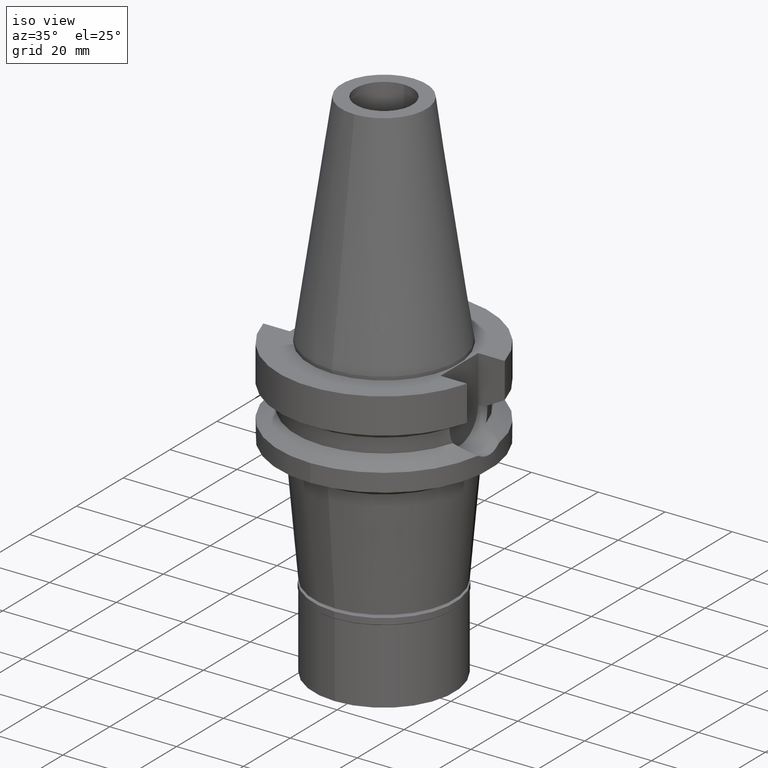
[diagram: clean part render]
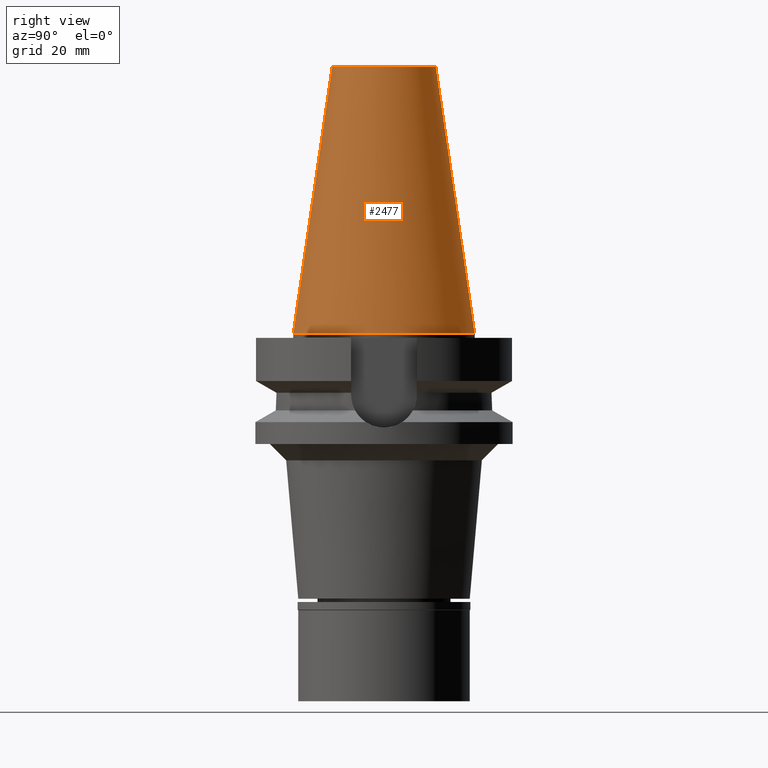
[diagram: tour spotlight — one face highlighted and labeled with its STEP entity id]
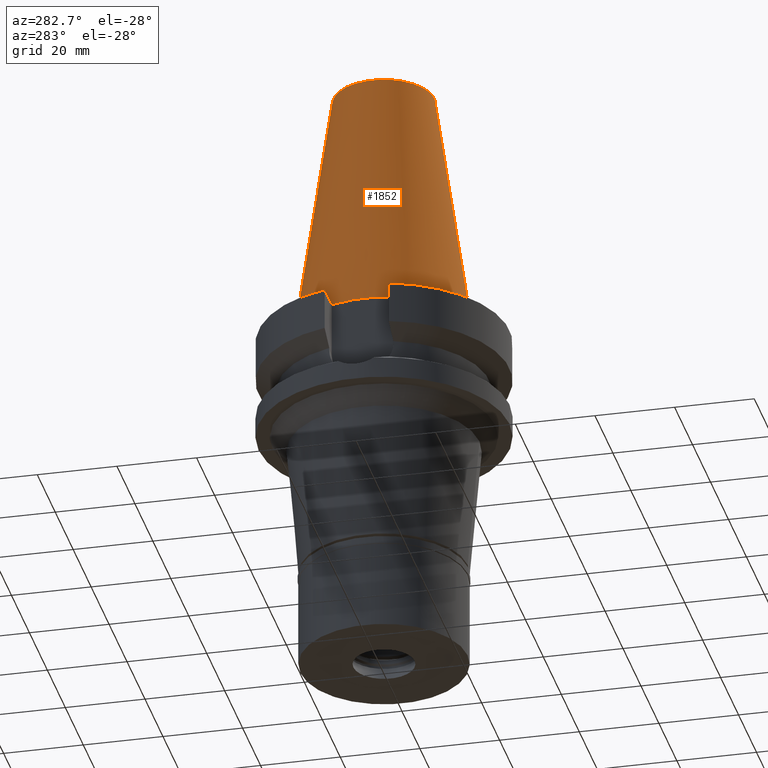
[diagram: tour spotlight — one face highlighted and labeled with its STEP entity id]
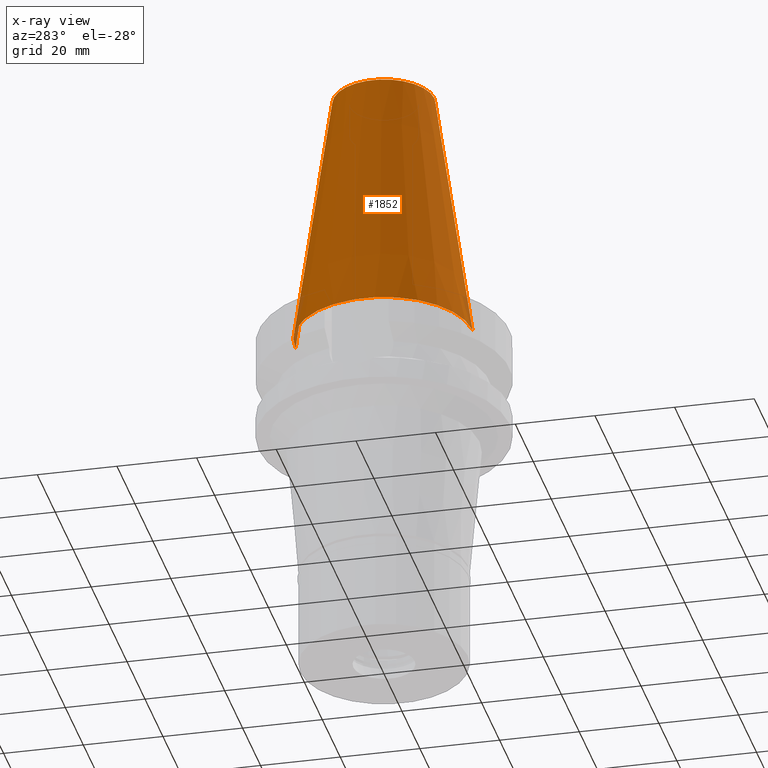
[diagram: x-ray of the same camera — body ghosted, this tour face saturated]
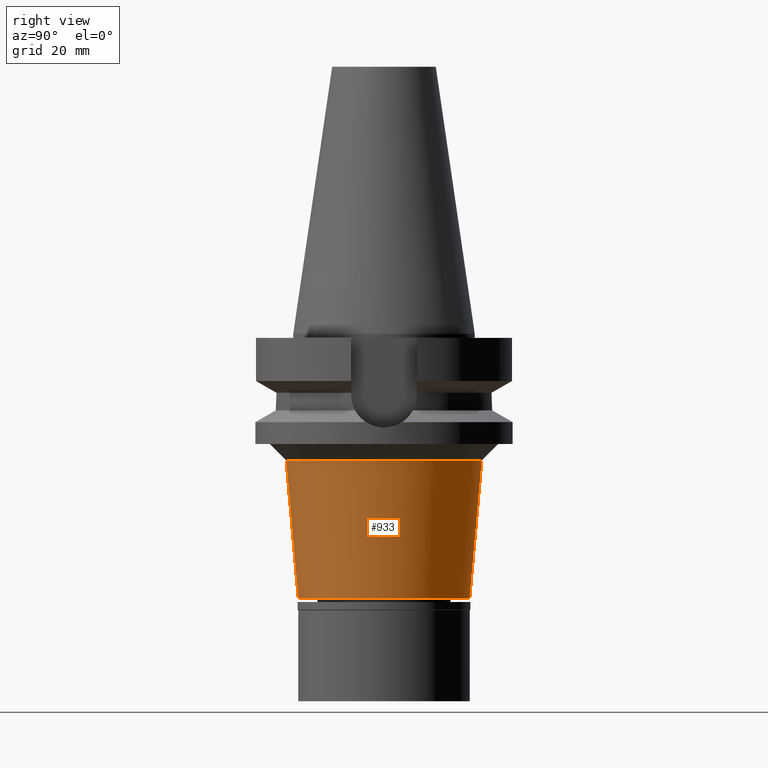
[diagram: tour spotlight — one face highlighted and labeled with its STEP entity id]
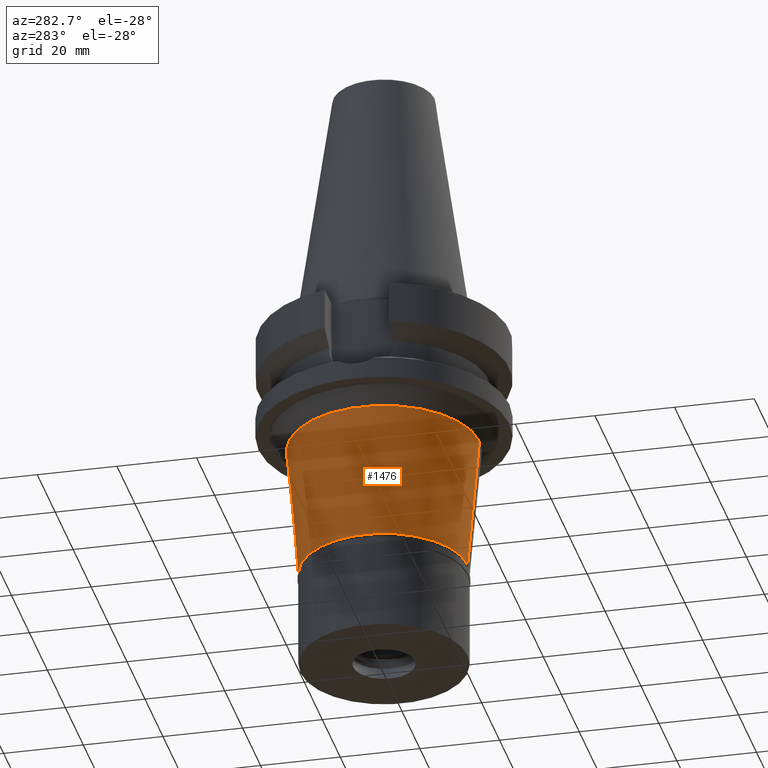
[diagram: tour spotlight — one face highlighted and labeled with its STEP entity id]
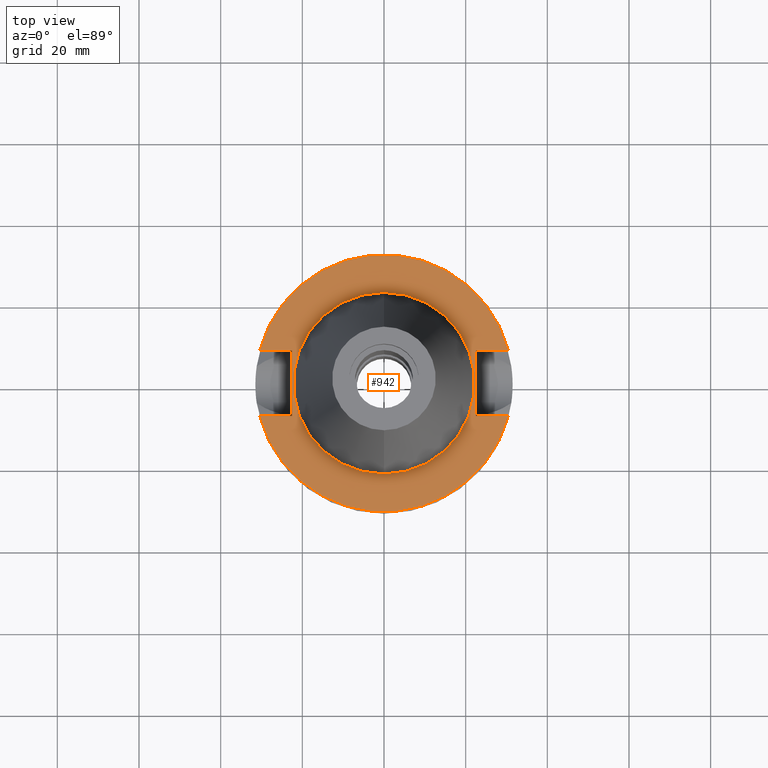
[diagram: tour spotlight — one face highlighted and labeled with its STEP entity id]
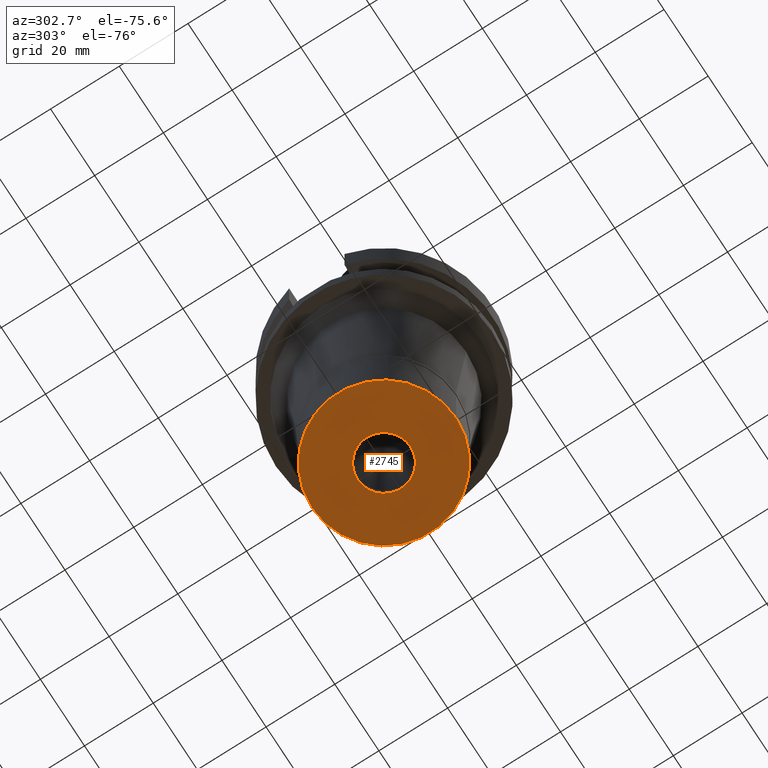
[diagram: tour spotlight — one face highlighted and labeled with its STEP entity id]
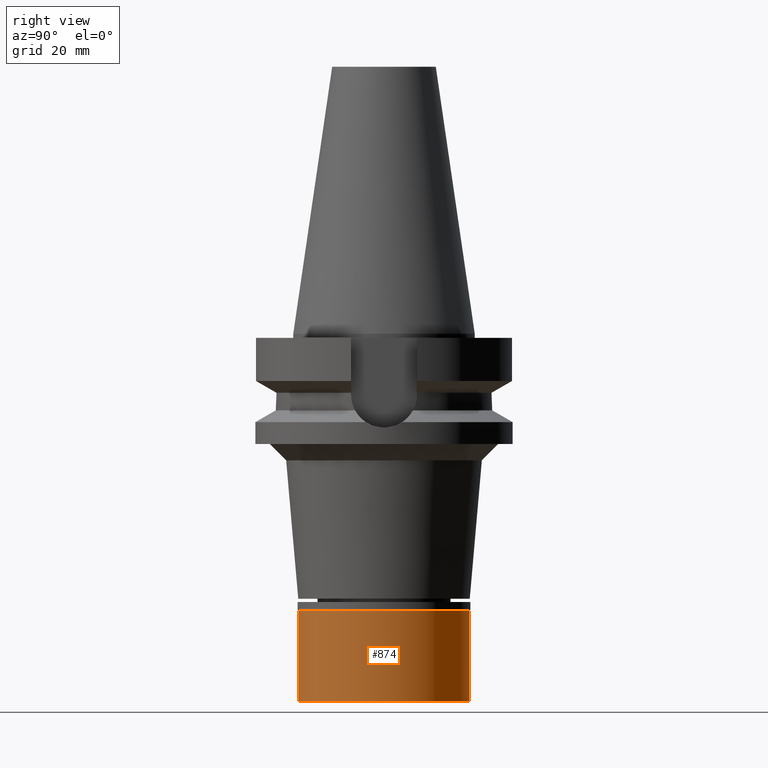
[diagram: tour spotlight — one face highlighted and labeled with its STEP entity id]
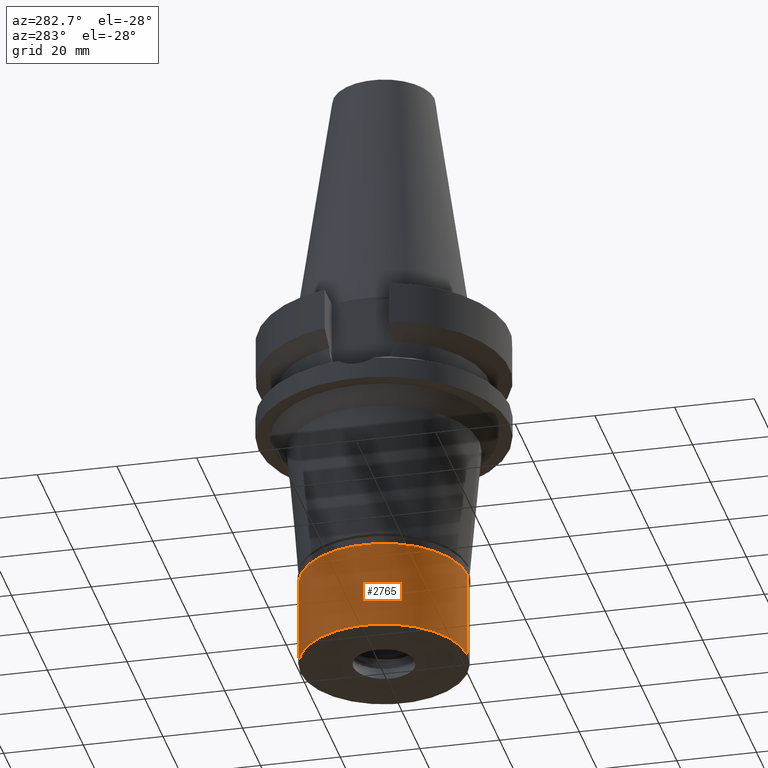
[diagram: tour spotlight — one face highlighted and labeled with its STEP entity id]
A machine part: a face-by-face anatomy tour. The part has 81 B-rep faces; the first image is the clean iso view, then the 8 largest visible faces are spotlighted one at a time (largest first), each with its STEP entity span.

Face 1 — right view, entity #2477. In plain terms, the highlighted conical surface has half-angle 8.297 deg.
Definition (entity closure, byte-faithful):
#53 = EDGE_LOOP ( 'NONE', ( #2361, #862, #2758, #2292 ) ) ;
#106 = DIRECTION ( 'NONE',  ( 0.0000000000000000000, -0.1443043893539925626, -0.9895333461855498891 ) ) ;
#161 = VERTEX_POINT ( 'NONE', #1517 ) ;
#201 = CARTESIAN_POINT ( 'NONE',  ( 0.0000000000000000000, -12.68766899429999917, 65.40000000000000568 ) ) ;
#221 = VECTOR ( 'NONE', #106, 1000.000000000000114 ) ;
#229 = CARTESIAN_POINT ( 'NONE',  ( 0.0000000000000000000, -22.22500000000000142, 6.394884621841000123E-14 ) ) ;
#326 = DIRECTION ( 'NONE',  ( 0.0000000000000000000, 1.000000000000000000, 0.0000000000000000000 ) ) ;
#533 = AXIS2_PLACEMENT_3D ( 'NONE', #2571, #1868, #906 ) ;
#569 = DIRECTION ( 'NONE',  ( 0.0000000000000000000, 0.0000000000000000000, -1.000000000000000000 ) ) ;
#654 = VERTEX_POINT ( 'NONE', #229 ) ;
#738 = EDGE_CURVE ( 'NONE', #1471, #2263, #1246, .T. ) ;
#785 = FACE_OUTER_BOUND ( 'NONE', #53, .T. ) ;
#829 = CARTESIAN_POINT ( 'NONE',  ( 0.0000000000000000000, -12.68766899429999917, 65.40000000000000568 ) ) ;
#862 = ORIENTED_EDGE ( 'NONE', *, *, #3039, .T. ) ;
#906 = DIRECTION ( 'NONE',  ( 0.0000000000000000000, -1.000000000000000000, 0.0000000000000000000 ) ) ;
#1145 = DIRECTION ( 'NONE',  ( 0.0000000000000000000, 1.000000000000000000, 0.0000000000000000000 ) ) ;
#1242 = CONICAL_SURFACE ( 'NONE', #533, 17.45633449714999941, 0.1448099680379422438 ) ;
#1246 = CIRCLE ( 'NONE', #1860, 12.68766899429999917 ) ;
#1321 = LINE ( 'NONE', #829, #221 ) ;
#1471 = VERTEX_POINT ( 'NONE', #2718 ) ;
#1517 = CARTESIAN_POINT ( 'NONE',  ( 0.0000000000000000000, 22.22500000000000142, 6.394884621841000123E-14 ) ) ;
#1858 = DIRECTION ( 'NONE',  ( 0.0000000000000000000, 0.0000000000000000000, -1.000000000000000000 ) ) ;
#1860 = AXIS2_PLACEMENT_3D ( 'NONE', #3066, #1858, #1145 ) ;
#1868 = DIRECTION ( 'NONE',  ( 0.0000000000000000000, 0.0000000000000000000, -1.000000000000000000 ) ) ;
#1954 = AXIS2_PLACEMENT_3D ( 'NONE', #2512, #569, #326 ) ;
#2263 = VERTEX_POINT ( 'NONE', #201 ) ;
#2292 = ORIENTED_EDGE ( 'NONE', *, *, #2978, .F. ) ;
#2361 = ORIENTED_EDGE ( 'NONE', *, *, #738, .T. ) ;
#2477 = ADVANCED_FACE ( 'NONE', ( #785 ), #1242, .T. ) ;
#2512 = CARTESIAN_POINT ( 'NONE',  ( 0.0000000000000000000, 1.625106302469000024E-14, 2.842170943039999687E-14 ) ) ;
#2571 = CARTESIAN_POINT ( 'NONE',  ( 0.0000000000000000000, 1.625106302469000024E-14, 32.70000000000000284 ) ) ;
#2590 = CARTESIAN_POINT ( 'NONE',  ( 0.0000000000000000000, 12.68766899429999917, 65.40000000000000568 ) ) ;
#2629 = CIRCLE ( 'NONE', #1954, 22.22500000000000142 ) ;
#2718 = CARTESIAN_POINT ( 'NONE',  ( 0.0000000000000000000, 12.68766899429999917, 65.40000000000000568 ) ) ;
#2721 = VECTOR ( 'NONE', #3038, 1000.000000000000114 ) ;
#2758 = ORIENTED_EDGE ( 'NONE', *, *, #2979, .F. ) ;
#2978 = EDGE_CURVE ( 'NONE', #1471, #161, #3069, .T. ) ;
#2979 = EDGE_CURVE ( 'NONE', #161, #654, #2629, .T. ) ;
#3038 = DIRECTION ( 'NONE',  ( 0.0000000000000000000, 0.1443043893539925626, -0.9895333461855498891 ) ) ;
#3039 = EDGE_CURVE ( 'NONE', #2263, #654, #1321, .T. ) ;
#3066 = CARTESIAN_POINT ( 'NONE',  ( 0.0000000000000000000, 1.625106302469000024E-14, 65.40000000000000568 ) ) ;
#3069 = LINE ( 'NONE', #2590, #2721 ) ;

Face 2 — auxiliary view, entity #1852. An x-ray twin of the same camera follows (body ghosted, this face saturated) — the face is partly hidden behind the body. In plain terms, the highlighted conical surface has half-angle 8.297 deg.
Definition (entity closure, byte-faithful):
#106 = DIRECTION ( 'NONE',  ( 0.0000000000000000000, -0.1443043893539925626, -0.9895333461855498891 ) ) ;
#161 = VERTEX_POINT ( 'NONE', #1517 ) ;
#194 = DIRECTION ( 'NONE',  ( 0.0000000000000000000, -1.000000000000000000, 0.0000000000000000000 ) ) ;
#201 = CARTESIAN_POINT ( 'NONE',  ( 0.0000000000000000000, -12.68766899429999917, 65.40000000000000568 ) ) ;
#221 = VECTOR ( 'NONE', #106, 1000.000000000000114 ) ;
#229 = CARTESIAN_POINT ( 'NONE',  ( 0.0000000000000000000, -22.22500000000000142, 6.394884621841000123E-14 ) ) ;
#267 = CARTESIAN_POINT ( 'NONE',  ( 0.0000000000000000000, 1.625106302469000024E-14, 32.70000000000000284 ) ) ;
#458 = ORIENTED_EDGE ( 'NONE', *, *, #2978, .T. ) ;
#598 = AXIS2_PLACEMENT_3D ( 'NONE', #267, #2456, #1075 ) ;
#654 = VERTEX_POINT ( 'NONE', #229 ) ;
#829 = CARTESIAN_POINT ( 'NONE',  ( 0.0000000000000000000, -12.68766899429999917, 65.40000000000000568 ) ) ;
#973 = ORIENTED_EDGE ( 'NONE', *, *, #3039, .F. ) ;
#1006 = CIRCLE ( 'NONE', #1058, 12.68766899429999917 ) ;
#1011 = DIRECTION ( 'NONE',  ( 0.0000000000000000000, -1.000000000000000000, 0.0000000000000000000 ) ) ;
#1058 = AXIS2_PLACEMENT_3D ( 'NONE', #2944, #2754, #1011 ) ;
#1075 = DIRECTION ( 'NONE',  ( 0.0000000000000000000, -1.000000000000000000, 0.0000000000000000000 ) ) ;
#1255 = AXIS2_PLACEMENT_3D ( 'NONE', #1725, #1902, #194 ) ;
#1321 = LINE ( 'NONE', #829, #221 ) ;
#1418 = EDGE_LOOP ( 'NONE', ( #2844, #973, #2519, #458 ) ) ;
#1471 = VERTEX_POINT ( 'NONE', #2718 ) ;
#1517 = CARTESIAN_POINT ( 'NONE',  ( 0.0000000000000000000, 22.22500000000000142, 6.394884621841000123E-14 ) ) ;
#1725 = CARTESIAN_POINT ( 'NONE',  ( 0.0000000000000000000, 1.625106302469000024E-14, 2.842170943039999687E-14 ) ) ;
#1755 = EDGE_CURVE ( 'NONE', #654, #161, #1762, .T. ) ;
#1762 = CIRCLE ( 'NONE', #1255, 22.22500000000000142 ) ;
#1800 = FACE_OUTER_BOUND ( 'NONE', #1418, .T. ) ;
#1852 = ADVANCED_FACE ( 'NONE', ( #1800 ), #2376, .T. ) ;
#1864 = EDGE_CURVE ( 'NONE', #2263, #1471, #1006, .T. ) ;
#1902 = DIRECTION ( 'NONE',  ( 0.0000000000000000000, 0.0000000000000000000, -1.000000000000000000 ) ) ;
#2263 = VERTEX_POINT ( 'NONE', #201 ) ;
#2376 = CONICAL_SURFACE ( 'NONE', #598, 17.45633449714999941, 0.1448099680379422438 ) ;
#2456 = DIRECTION ( 'NONE',  ( 0.0000000000000000000, 0.0000000000000000000, -1.000000000000000000 ) ) ;
#2519 = ORIENTED_EDGE ( 'NONE', *, *, #1864, .T. ) ;
#2590 = CARTESIAN_POINT ( 'NONE',  ( 0.0000000000000000000, 12.68766899429999917, 65.40000000000000568 ) ) ;
#2718 = CARTESIAN_POINT ( 'NONE',  ( 0.0000000000000000000, 12.68766899429999917, 65.40000000000000568 ) ) ;
#2721 = VECTOR ( 'NONE', #3038, 1000.000000000000114 ) ;
#2754 = DIRECTION ( 'NONE',  ( 0.0000000000000000000, 0.0000000000000000000, -1.000000000000000000 ) ) ;
#2844 = ORIENTED_EDGE ( 'NONE', *, *, #1755, .F. ) ;
#2944 = CARTESIAN_POINT ( 'NONE',  ( 0.0000000000000000000, 1.625106302469000024E-14, 65.40000000000000568 ) ) ;
#2978 = EDGE_CURVE ( 'NONE', #1471, #161, #3069, .T. ) ;
#3038 = DIRECTION ( 'NONE',  ( 0.0000000000000000000, 0.1443043893539925626, -0.9895333461855498891 ) ) ;
#3039 = EDGE_CURVE ( 'NONE', #2263, #654, #1321, .T. ) ;
#3069 = LINE ( 'NONE', #2590, #2721 ) ;

Face 3 — right view, entity #933. In plain terms, the highlighted conical surface has half-angle 5 deg.
Definition (entity closure, byte-faithful):
#66 = VECTOR ( 'NONE', #2018, 1000.000000000000114 ) ;
#262 = CARTESIAN_POINT ( 'NONE',  ( 0.0000000000000000000, 23.96586569352999874, -31.00000000000000000 ) ) ;
#343 = DIRECTION ( 'NONE',  ( 0.0000000000000000000, 0.0000000000000000000, 1.000000000000000000 ) ) ;
#389 = CIRCLE ( 'NONE', #704, 23.96586569352000140 ) ;
#476 = VERTEX_POINT ( 'NONE', #2300 ) ;
#493 = CARTESIAN_POINT ( 'NONE',  ( 0.0000000000000000000, -21.00000000000000000, -64.90000000000000568 ) ) ;
#596 = LINE ( 'NONE', #856, #705 ) ;
#641 = EDGE_CURVE ( 'NONE', #1337, #476, #1351, .T. ) ;
#704 = AXIS2_PLACEMENT_3D ( 'NONE', #2747, #343, #2509 ) ;
#705 = VECTOR ( 'NONE', #2308, 1000.000000000000114 ) ;
#856 = CARTESIAN_POINT ( 'NONE',  ( 0.0000000000000000000, -23.96586569352999874, -31.00000000000000000 ) ) ;
#933 = ADVANCED_FACE ( 'NONE', ( #2952 ), #999, .T. ) ;
#981 = ORIENTED_EDGE ( 'NONE', *, *, #2419, .F. ) ;
#999 = CONICAL_SURFACE ( 'NONE', #2923, 22.48293284676000070, 0.08726646259969973729 ) ;
#1287 = CARTESIAN_POINT ( 'NONE',  ( 0.0000000000000000000, 23.96586569352999874, -31.00000000000000000 ) ) ;
#1337 = VERTEX_POINT ( 'NONE', #493 ) ;
#1351 = CIRCLE ( 'NONE', #3130, 21.00000000000000000 ) ;
#1388 = ORIENTED_EDGE ( 'NONE', *, *, #641, .T. ) ;
#1442 = DIRECTION ( 'NONE',  ( 0.0000000000000000000, 0.0000000000000000000, 1.000000000000000000 ) ) ;
#1526 = DIRECTION ( 'NONE',  ( 0.0000000000000000000, 0.0000000000000000000, 1.000000000000000000 ) ) ;
#1582 = EDGE_CURVE ( 'NONE', #1742, #2393, #389, .T. ) ;
#1742 = VERTEX_POINT ( 'NONE', #3114 ) ;
#1838 = EDGE_LOOP ( 'NONE', ( #2277, #3119, #1388, #981 ) ) ;
#1933 = CARTESIAN_POINT ( 'NONE',  ( 0.0000000000000000000, 0.0000000000000000000, -64.90000000000000568 ) ) ;
#1973 = DIRECTION ( 'NONE',  ( 0.0000000000000000000, 1.000000000000000000, 0.0000000000000000000 ) ) ;
#1987 = EDGE_CURVE ( 'NONE', #1742, #1337, #596, .T. ) ;
#2018 = DIRECTION ( 'NONE',  ( 0.0000000000000000000, -0.08715574274770364338, -0.9961946980917415484 ) ) ;
#2277 = ORIENTED_EDGE ( 'NONE', *, *, #1582, .F. ) ;
#2300 = CARTESIAN_POINT ( 'NONE',  ( 0.0000000000000000000, 21.00000000000000000, -64.90000000000000568 ) ) ;
#2308 = DIRECTION ( 'NONE',  ( 0.0000000000000000000, 0.08715574274770364338, -0.9961946980917415484 ) ) ;
#2393 = VERTEX_POINT ( 'NONE', #1287 ) ;
#2419 = EDGE_CURVE ( 'NONE', #2393, #476, #2737, .T. ) ;
#2509 = DIRECTION ( 'NONE',  ( 0.0000000000000000000, -1.000000000000000000, 0.0000000000000000000 ) ) ;
#2697 = CARTESIAN_POINT ( 'NONE',  ( 0.0000000000000000000, 0.0000000000000000000, -47.95000000000000284 ) ) ;
#2737 = LINE ( 'NONE', #262, #66 ) ;
#2747 = CARTESIAN_POINT ( 'NONE',  ( 0.0000000000000000000, 0.0000000000000000000, -31.00000000000000000 ) ) ;
#2923 = AXIS2_PLACEMENT_3D ( 'NONE', #2697, #1526, #1973 ) ;
#2948 = DIRECTION ( 'NONE',  ( 0.0000000000000000000, -1.000000000000000000, 0.0000000000000000000 ) ) ;
#2952 = FACE_OUTER_BOUND ( 'NONE', #1838, .T. ) ;
#3114 = CARTESIAN_POINT ( 'NONE',  ( 0.0000000000000000000, -23.96586569352999874, -31.00000000000000000 ) ) ;
#3119 = ORIENTED_EDGE ( 'NONE', *, *, #1987, .T. ) ;
#3130 = AXIS2_PLACEMENT_3D ( 'NONE', #1933, #1442, #2948 ) ;

Face 4 — auxiliary view, entity #1476. In plain terms, the highlighted conical surface has half-angle 5 deg.
Definition (entity closure, byte-faithful):
#22 = AXIS2_PLACEMENT_3D ( 'NONE', #277, #510, #1256 ) ;
#66 = VECTOR ( 'NONE', #2018, 1000.000000000000114 ) ;
#262 = CARTESIAN_POINT ( 'NONE',  ( 0.0000000000000000000, 23.96586569352999874, -31.00000000000000000 ) ) ;
#277 = CARTESIAN_POINT ( 'NONE',  ( 0.0000000000000000000, 0.0000000000000000000, -31.00000000000000000 ) ) ;
#476 = VERTEX_POINT ( 'NONE', #2300 ) ;
#493 = CARTESIAN_POINT ( 'NONE',  ( 0.0000000000000000000, -21.00000000000000000, -64.90000000000000568 ) ) ;
#510 = DIRECTION ( 'NONE',  ( 0.0000000000000000000, 0.0000000000000000000, -1.000000000000000000 ) ) ;
#567 = CARTESIAN_POINT ( 'NONE',  ( 0.0000000000000000000, 0.0000000000000000000, -47.95000000000000284 ) ) ;
#596 = LINE ( 'NONE', #856, #705 ) ;
#705 = VECTOR ( 'NONE', #2308, 1000.000000000000114 ) ;
#856 = CARTESIAN_POINT ( 'NONE',  ( 0.0000000000000000000, -23.96586569352999874, -31.00000000000000000 ) ) ;
#929 = DIRECTION ( 'NONE',  ( 0.0000000000000000000, 0.0000000000000000000, 1.000000000000000000 ) ) ;
#989 = ORIENTED_EDGE ( 'NONE', *, *, #2858, .T. ) ;
#1150 = CARTESIAN_POINT ( 'NONE',  ( 0.0000000000000000000, 0.0000000000000000000, -64.90000000000000568 ) ) ;
#1256 = DIRECTION ( 'NONE',  ( 0.0000000000000000000, -1.000000000000000000, 0.0000000000000000000 ) ) ;
#1287 = CARTESIAN_POINT ( 'NONE',  ( 0.0000000000000000000, 23.96586569352999874, -31.00000000000000000 ) ) ;
#1337 = VERTEX_POINT ( 'NONE', #493 ) ;
#1476 = ADVANCED_FACE ( 'NONE', ( #2233 ), #1660, .T. ) ;
#1660 = CONICAL_SURFACE ( 'NONE', #2324, 22.48293284676000070, 0.08726646259969973729 ) ;
#1742 = VERTEX_POINT ( 'NONE', #3114 ) ;
#1987 = EDGE_CURVE ( 'NONE', #1742, #1337, #596, .T. ) ;
#2018 = DIRECTION ( 'NONE',  ( 0.0000000000000000000, -0.08715574274770364338, -0.9961946980917415484 ) ) ;
#2072 = ORIENTED_EDGE ( 'NONE', *, *, #1987, .F. ) ;
#2152 = CIRCLE ( 'NONE', #22, 23.96586569352999874 ) ;
#2233 = FACE_OUTER_BOUND ( 'NONE', #2462, .T. ) ;
#2300 = CARTESIAN_POINT ( 'NONE',  ( 0.0000000000000000000, 21.00000000000000000, -64.90000000000000568 ) ) ;
#2308 = DIRECTION ( 'NONE',  ( 0.0000000000000000000, 0.08715574274770364338, -0.9961946980917415484 ) ) ;
#2317 = ORIENTED_EDGE ( 'NONE', *, *, #2419, .T. ) ;
#2324 = AXIS2_PLACEMENT_3D ( 'NONE', #567, #2811, #2549 ) ;
#2364 = ORIENTED_EDGE ( 'NONE', *, *, #3085, .T. ) ;
#2393 = VERTEX_POINT ( 'NONE', #1287 ) ;
#2419 = EDGE_CURVE ( 'NONE', #2393, #476, #2737, .T. ) ;
#2462 = EDGE_LOOP ( 'NONE', ( #2364, #2072, #989, #2317 ) ) ;
#2549 = DIRECTION ( 'NONE',  ( 0.0000000000000000000, 1.000000000000000000, 0.0000000000000000000 ) ) ;
#2737 = LINE ( 'NONE', #262, #66 ) ;
#2770 = AXIS2_PLACEMENT_3D ( 'NONE', #1150, #929, #3014 ) ;
#2811 = DIRECTION ( 'NONE',  ( 0.0000000000000000000, 0.0000000000000000000, 1.000000000000000000 ) ) ;
#2858 = EDGE_CURVE ( 'NONE', #1742, #2393, #2152, .T. ) ;
#3014 = DIRECTION ( 'NONE',  ( 0.0000000000000000000, 1.000000000000000000, 0.0000000000000000000 ) ) ;
#3079 = CIRCLE ( 'NONE', #2770, 21.00000000000000000 ) ;
#3085 = EDGE_CURVE ( 'NONE', #476, #1337, #3079, .T. ) ;
#3114 = CARTESIAN_POINT ( 'NONE',  ( 0.0000000000000000000, -23.96586569352999874, -31.00000000000000000 ) ) ;

Face 5 — top view, entity #942. In plain terms, the highlighted planar face has unit normal (0, 0, -1).
Definition (entity closure, byte-faithful):
#27 = CIRCLE ( 'NONE', #3086, 31.50000000000000000 ) ;
#42 = CARTESIAN_POINT ( 'NONE',  ( -22.50000000000000000, 8.050000000000000711, -1.000000000000000000 ) ) ;
#273 = VERTEX_POINT ( 'NONE', #562 ) ;
#294 = CARTESIAN_POINT ( 'NONE',  ( 0.0000000000000000000, 1.212400331155999925E-14, -1.000000000000000000 ) ) ;
#304 = EDGE_CURVE ( 'NONE', #1214, #1317, #2052, .T. ) ;
#470 = ORIENTED_EDGE ( 'NONE', *, *, #2628, .F. ) ;
#528 = EDGE_CURVE ( 'NONE', #1629, #3050, #2591, .T. ) ;
#555 = DIRECTION ( 'NONE',  ( 0.0000000000000000000, -1.000000000000000000, 0.0000000000000000000 ) ) ;
#562 = CARTESIAN_POINT ( 'NONE',  ( 30.45402272279000044, 8.050000000000000711, -1.000000000000000000 ) ) ;
#630 = EDGE_LOOP ( 'NONE', ( #1461, #2675, #925, #2793, #2055, #470, #1304, #2342 ) ) ;
#634 = EDGE_CURVE ( 'NONE', #1214, #273, #1714, .T. ) ;
#703 = EDGE_LOOP ( 'NONE', ( #2806, #3064 ) ) ;
#708 = VERTEX_POINT ( 'NONE', #1115 ) ;
#747 = EDGE_CURVE ( 'NONE', #708, #1393, #3023, .T. ) ;
#783 = FACE_OUTER_BOUND ( 'NONE', #630, .T. ) ;
#886 = DIRECTION ( 'NONE',  ( -1.000000000000000000, 3.550916904668000126E-14, 0.0000000000000000000 ) ) ;
#901 = CIRCLE ( 'NONE', #1546, 31.50000000000000000 ) ;
#925 = ORIENTED_EDGE ( 'NONE', *, *, #1909, .F. ) ;
#927 = CARTESIAN_POINT ( 'NONE',  ( -22.50000000000000000, -8.050000000000000711, -1.000000000000000000 ) ) ;
#942 = ADVANCED_FACE ( 'NONE', ( #783, #1748 ), #1511, .F. ) ;
#971 = VERTEX_POINT ( 'NONE', #1815 ) ;
#1016 = DIRECTION ( 'NONE',  ( 1.000000000000000000, -3.506251283225999947E-14, 0.0000000000000000000 ) ) ;
#1100 = CARTESIAN_POINT ( 'NONE',  ( -30.45402272279000044, -8.050000000000000711, -1.000000000000000000 ) ) ;
#1101 = CARTESIAN_POINT ( 'NONE',  ( -22.50000000000000000, -8.050000000000000711, -1.000000000000000000 ) ) ;
#1107 = CARTESIAN_POINT ( 'NONE',  ( -22.50000000000000000, -8.050000000000000711, -1.000000000000000000 ) ) ;
#1115 = CARTESIAN_POINT ( 'NONE',  ( 0.0000000000000000000, -22.22500000000000142, -1.000000000000000000 ) ) ;
#1204 = AXIS2_PLACEMENT_3D ( 'NONE', #1916, #1664, #1496 ) ;
#1214 = VERTEX_POINT ( 'NONE', #2892 ) ;
#1253 = DIRECTION ( 'NONE',  ( 0.0000000000000000000, 0.0000000000000000000, 1.000000000000000000 ) ) ;
#1271 = CARTESIAN_POINT ( 'NONE',  ( 0.0000000000000000000, 2.116128436586999977E-14, -1.000000000000000000 ) ) ;
#1273 = DIRECTION ( 'NONE',  ( 0.0000000000000000000, 0.0000000000000000000, -1.000000000000000000 ) ) ;
#1283 = DIRECTION ( 'NONE',  ( -1.000000000000000000, -3.550916904668000126E-14, 0.0000000000000000000 ) ) ;
#1304 = ORIENTED_EDGE ( 'NONE', *, *, #1356, .F. ) ;
#1317 = VERTEX_POINT ( 'NONE', #2734 ) ;
#1348 = EDGE_CURVE ( 'NONE', #1877, #3050, #27, .T. ) ;
#1356 = EDGE_CURVE ( 'NONE', #1450, #971, #2433, .T. ) ;
#1393 = VERTEX_POINT ( 'NONE', #1984 ) ;
#1437 = EDGE_CURVE ( 'NONE', #1393, #708, #1912, .T. ) ;
#1450 = VERTEX_POINT ( 'NONE', #42 ) ;
#1461 = ORIENTED_EDGE ( 'NONE', *, *, #528, .T. ) ;
#1496 = DIRECTION ( 'NONE',  ( 0.0000000000000000000, -1.000000000000000000, 0.0000000000000000000 ) ) ;
#1510 = VECTOR ( 'NONE', #2609, 1000.000000000000000 ) ;
#1511 = PLANE ( 'NONE',  #3135 ) ;
#1522 = CARTESIAN_POINT ( 'NONE',  ( -22.50000000000000000, 8.050000000000000711, -1.000000000000000000 ) ) ;
#1546 = AXIS2_PLACEMENT_3D ( 'NONE', #3107, #2168, #2850 ) ;
#1606 = DIRECTION ( 'NONE',  ( 0.0000000000000000000, -1.000000000000000000, 0.0000000000000000000 ) ) ;
#1629 = VERTEX_POINT ( 'NONE', #927 ) ;
#1664 = DIRECTION ( 'NONE',  ( 0.0000000000000000000, 0.0000000000000000000, 1.000000000000000000 ) ) ;
#1714 = LINE ( 'NONE', #2693, #1752 ) ;
#1748 = FACE_BOUND ( 'NONE', #703, .T. ) ;
#1752 = VECTOR ( 'NONE', #1016, 1000.000000000000000 ) ;
#1815 = CARTESIAN_POINT ( 'NONE',  ( -30.45402272279000044, 8.050000000000000711, -1.000000000000000000 ) ) ;
#1877 = VERTEX_POINT ( 'NONE', #3005 ) ;
#1909 = EDGE_CURVE ( 'NONE', #1317, #1877, #2020, .T. ) ;
#1912 = CIRCLE ( 'NONE', #2879, 22.22500000000000142 ) ;
#1916 = CARTESIAN_POINT ( 'NONE',  ( 0.0000000000000000000, 2.116128436586999977E-14, -1.000000000000000000 ) ) ;
#1984 = CARTESIAN_POINT ( 'NONE',  ( 0.0000000000000000000, 22.22500000000000142, -1.000000000000000000 ) ) ;
#2020 = LINE ( 'NONE', #2491, #2882 ) ;
#2052 = LINE ( 'NONE', #3028, #2103 ) ;
#2055 = ORIENTED_EDGE ( 'NONE', *, *, #634, .T. ) ;
#2103 = VECTOR ( 'NONE', #2504, 1000.000000000000000 ) ;
#2126 = EDGE_CURVE ( 'NONE', #1629, #1450, #2556, .T. ) ;
#2150 = VECTOR ( 'NONE', #886, 1000.000000000000000 ) ;
#2168 = DIRECTION ( 'NONE',  ( 0.0000000000000000000, 0.0000000000000000000, -1.000000000000000000 ) ) ;
#2177 = CARTESIAN_POINT ( 'NONE',  ( 0.0000000000000000000, 2.116128436586999977E-14, -1.000000000000000000 ) ) ;
#2219 = DIRECTION ( 'NONE',  ( 0.0000000000000000000, 1.000000000000000000, 0.0000000000000000000 ) ) ;
#2342 = ORIENTED_EDGE ( 'NONE', *, *, #2126, .F. ) ;
#2433 = LINE ( 'NONE', #1522, #2877 ) ;
#2491 = CARTESIAN_POINT ( 'NONE',  ( 22.50000000000000000, -8.050000000000000711, -1.000000000000000000 ) ) ;
#2496 = DIRECTION ( 'NONE',  ( 0.0000000000000000000, 0.0000000000000000000, -1.000000000000000000 ) ) ;
#2504 = DIRECTION ( 'NONE',  ( 0.0000000000000000000, -1.000000000000000000, 0.0000000000000000000 ) ) ;
#2556 = LINE ( 'NONE', #1107, #1510 ) ;
#2591 = LINE ( 'NONE', #1101, #2150 ) ;
#2609 = DIRECTION ( 'NONE',  ( 0.0000000000000000000, 1.000000000000000000, 0.0000000000000000000 ) ) ;
#2628 = EDGE_CURVE ( 'NONE', #971, #273, #901, .T. ) ;
#2675 = ORIENTED_EDGE ( 'NONE', *, *, #1348, .F. ) ;
#2693 = CARTESIAN_POINT ( 'NONE',  ( 22.50000000000000000, 8.050000000000000711, -1.000000000000000000 ) ) ;
#2734 = CARTESIAN_POINT ( 'NONE',  ( 22.50000000000000000, -8.050000000000000711, -1.000000000000000000 ) ) ;
#2793 = ORIENTED_EDGE ( 'NONE', *, *, #304, .F. ) ;
#2806 = ORIENTED_EDGE ( 'NONE', *, *, #1437, .F. ) ;
#2850 = DIRECTION ( 'NONE',  ( 0.0000000000000000000, 1.000000000000000000, 0.0000000000000000000 ) ) ;
#2877 = VECTOR ( 'NONE', #1283, 1000.000000000000000 ) ;
#2879 = AXIS2_PLACEMENT_3D ( 'NONE', #1271, #1253, #2219 ) ;
#2882 = VECTOR ( 'NONE', #2977, 1000.000000000000000 ) ;
#2892 = CARTESIAN_POINT ( 'NONE',  ( 22.50000000000000000, 8.050000000000000711, -1.000000000000000000 ) ) ;
#2977 = DIRECTION ( 'NONE',  ( 1.000000000000000000, 3.573249715389999860E-14, 0.0000000000000000000 ) ) ;
#3005 = CARTESIAN_POINT ( 'NONE',  ( 30.45402272279000044, -8.050000000000000711, -1.000000000000000000 ) ) ;
#3023 = CIRCLE ( 'NONE', #1204, 22.22500000000000142 ) ;
#3028 = CARTESIAN_POINT ( 'NONE',  ( 22.50000000000000000, 8.050000000000000711, -1.000000000000000000 ) ) ;
#3050 = VERTEX_POINT ( 'NONE', #1100 ) ;
#3064 = ORIENTED_EDGE ( 'NONE', *, *, #747, .F. ) ;
#3086 = AXIS2_PLACEMENT_3D ( 'NONE', #2177, #2496, #555 ) ;
#3107 = CARTESIAN_POINT ( 'NONE',  ( 0.0000000000000000000, 2.116128436586999977E-14, -1.000000000000000000 ) ) ;
#3135 = AXIS2_PLACEMENT_3D ( 'NONE', #294, #1273, #1606 ) ;

Face 6 — auxiliary view, entity #2745. In plain terms, the highlighted planar face has unit normal (0, 0, -1).
Definition (entity closure, byte-faithful):
#13 = DIRECTION ( 'NONE',  ( 0.0000000000000000000, -1.000000000000000000, 0.0000000000000000000 ) ) ;
#30 = DIRECTION ( 'NONE',  ( 0.0000000000000000000, 0.0000000000000000000, -1.000000000000000000 ) ) ;
#123 = CARTESIAN_POINT ( 'NONE',  ( 0.0000000000000000000, 7.700000000000000178, -24.29999999999999716 ) ) ;
#204 = EDGE_CURVE ( 'NONE', #2090, #1315, #843, .T. ) ;
#330 = DIRECTION ( 'NONE',  ( 0.0000000000000000000, 1.000000000000000000, 0.0000000000000000000 ) ) ;
#361 = ORIENTED_EDGE ( 'NONE', *, *, #2457, .F. ) ;
#434 = CARTESIAN_POINT ( 'NONE',  ( 0.0000000000000000000, 0.0000000000000000000, -24.29999999999999716 ) ) ;
#843 = CIRCLE ( 'NONE', #2195, 21.00000000000000000 ) ;
#844 = CIRCLE ( 'NONE', #2625, 7.700000000000000178 ) ;
#852 = CARTESIAN_POINT ( 'NONE',  ( 0.0000000000000000000, 0.0000000000000000000, -24.29999999999999716 ) ) ;
#910 = AXIS2_PLACEMENT_3D ( 'NONE', #1959, #2186, #13 ) ;
#990 = CARTESIAN_POINT ( 'NONE',  ( 0.0000000000000000000, 0.0000000000000000000, -24.29999999999999716 ) ) ;
#1009 = DIRECTION ( 'NONE',  ( 0.0000000000000000000, 1.000000000000000000, 0.0000000000000000000 ) ) ;
#1026 = CARTESIAN_POINT ( 'NONE',  ( 0.0000000000000000000, 0.0000000000000000000, -24.29999999999999716 ) ) ;
#1034 = EDGE_CURVE ( 'NONE', #1315, #2090, #2724, .T. ) ;
#1220 = CARTESIAN_POINT ( 'NONE',  ( 0.0000000000000000000, -7.700000000000000178, -24.29999999999999716 ) ) ;
#1314 = DIRECTION ( 'NONE',  ( 0.0000000000000000000, -1.000000000000000000, 0.0000000000000000000 ) ) ;
#1315 = VERTEX_POINT ( 'NONE', #2904 ) ;
#1352 = EDGE_LOOP ( 'NONE', ( #361, #2662 ) ) ;
#1368 = ORIENTED_EDGE ( 'NONE', *, *, #204, .F. ) ;
#1404 = DIRECTION ( 'NONE',  ( 0.0000000000000000000, -1.000000000000000000, 0.0000000000000000000 ) ) ;
#1579 = ORIENTED_EDGE ( 'NONE', *, *, #1034, .F. ) ;
#1608 = AXIS2_PLACEMENT_3D ( 'NONE', #852, #3042, #330 ) ;
#1673 = EDGE_CURVE ( 'NONE', #3149, #2581, #2639, .T. ) ;
#1696 = AXIS2_PLACEMENT_3D ( 'NONE', #434, #1882, #1404 ) ;
#1699 = FACE_OUTER_BOUND ( 'NONE', #2023, .T. ) ;
#1882 = DIRECTION ( 'NONE',  ( 0.0000000000000000000, 0.0000000000000000000, -1.000000000000000000 ) ) ;
#1959 = CARTESIAN_POINT ( 'NONE',  ( 0.0000000000000000000, 0.0000000000000000000, -24.29999999999999716 ) ) ;
#2023 = EDGE_LOOP ( 'NONE', ( #1579, #1368 ) ) ;
#2049 = CARTESIAN_POINT ( 'NONE',  ( 0.0000000000000000000, -21.00000000000000000, -24.29999999999999716 ) ) ;
#2090 = VERTEX_POINT ( 'NONE', #2049 ) ;
#2156 = FACE_BOUND ( 'NONE', #1352, .T. ) ;
#2186 = DIRECTION ( 'NONE',  ( 0.0000000000000000000, 0.0000000000000000000, -1.000000000000000000 ) ) ;
#2195 = AXIS2_PLACEMENT_3D ( 'NONE', #1026, #2258, #1314 ) ;
#2258 = DIRECTION ( 'NONE',  ( 0.0000000000000000000, 0.0000000000000000000, 1.000000000000000000 ) ) ;
#2457 = EDGE_CURVE ( 'NONE', #2581, #3149, #844, .T. ) ;
#2581 = VERTEX_POINT ( 'NONE', #123 ) ;
#2625 = AXIS2_PLACEMENT_3D ( 'NONE', #990, #30, #1009 ) ;
#2639 = CIRCLE ( 'NONE', #910, 7.700000000000000178 ) ;
#2662 = ORIENTED_EDGE ( 'NONE', *, *, #1673, .F. ) ;
#2724 = CIRCLE ( 'NONE', #1608, 21.00000000000000000 ) ;
#2745 = ADVANCED_FACE ( 'NONE', ( #1699, #2156 ), #2906, .T. ) ;
#2904 = CARTESIAN_POINT ( 'NONE',  ( 0.0000000000000000000, 21.00000000000000000, -24.29999999999999716 ) ) ;
#2906 = PLANE ( 'NONE',  #1696 ) ;
#3042 = DIRECTION ( 'NONE',  ( 0.0000000000000000000, 0.0000000000000000000, 1.000000000000000000 ) ) ;
#3149 = VERTEX_POINT ( 'NONE', #1220 ) ;

Face 7 — right view, entity #874. In plain terms, the highlighted cylindrical surface (partial cylindrical patch) has radius 21 mm, axis along (0, 0, -1).
Definition (entity closure, byte-faithful):
#28 = CARTESIAN_POINT ( 'NONE',  ( 0.0000000000000000000, 0.0000000000000000000, 0.0000000000000000000 ) ) ;
#69 = EDGE_LOOP ( 'NONE', ( #1065, #846, #140, #1438 ) ) ;
#140 = ORIENTED_EDGE ( 'NONE', *, *, #204, .T. ) ;
#204 = EDGE_CURVE ( 'NONE', #2090, #1315, #843, .T. ) ;
#223 = VERTEX_POINT ( 'NONE', #599 ) ;
#599 = CARTESIAN_POINT ( 'NONE',  ( 0.0000000000000000000, 21.00000000000000000, -2.000000000000000000 ) ) ;
#737 = LINE ( 'NONE', #1171, #2104 ) ;
#740 = DIRECTION ( 'NONE',  ( 0.0000000000000000000, 0.0000000000000000000, -1.000000000000000000 ) ) ;
#843 = CIRCLE ( 'NONE', #2195, 21.00000000000000000 ) ;
#846 = ORIENTED_EDGE ( 'NONE', *, *, #3048, .T. ) ;
#874 = ADVANCED_FACE ( 'NONE', ( #2252 ), #1285, .T. ) ;
#948 = CARTESIAN_POINT ( 'NONE',  ( 0.0000000000000000000, -21.00000000000000000, -2.000000000000000000 ) ) ;
#1026 = CARTESIAN_POINT ( 'NONE',  ( 0.0000000000000000000, 0.0000000000000000000, -24.29999999999999716 ) ) ;
#1065 = ORIENTED_EDGE ( 'NONE', *, *, #2290, .T. ) ;
#1081 = CARTESIAN_POINT ( 'NONE',  ( 0.0000000000000000000, -21.00000000000000000, -2.000000000000000000 ) ) ;
#1116 = CIRCLE ( 'NONE', #2377, 21.00000000000000000 ) ;
#1171 = CARTESIAN_POINT ( 'NONE',  ( 0.0000000000000000000, 21.00000000000000000, -2.000000000000000000 ) ) ;
#1225 = DIRECTION ( 'NONE',  ( 0.0000000000000000000, 0.0000000000000000000, -1.000000000000000000 ) ) ;
#1240 = DIRECTION ( 'NONE',  ( 0.0000000000000000000, -1.000000000000000000, 0.0000000000000000000 ) ) ;
#1285 = CYLINDRICAL_SURFACE ( 'NONE', #2256, 21.00000000000000000 ) ;
#1314 = DIRECTION ( 'NONE',  ( 0.0000000000000000000, -1.000000000000000000, 0.0000000000000000000 ) ) ;
#1315 = VERTEX_POINT ( 'NONE', #2904 ) ;
#1438 = ORIENTED_EDGE ( 'NONE', *, *, #2759, .F. ) ;
#1451 = DIRECTION ( 'NONE',  ( 0.0000000000000000000, 1.000000000000000000, 0.0000000000000000000 ) ) ;
#2040 = DIRECTION ( 'NONE',  ( 0.0000000000000000000, 0.0000000000000000000, -1.000000000000000000 ) ) ;
#2049 = CARTESIAN_POINT ( 'NONE',  ( 0.0000000000000000000, -21.00000000000000000, -24.29999999999999716 ) ) ;
#2090 = VERTEX_POINT ( 'NONE', #2049 ) ;
#2104 = VECTOR ( 'NONE', #2130, 1000.000000000000000 ) ;
#2130 = DIRECTION ( 'NONE',  ( 0.0000000000000000000, 0.0000000000000000000, -1.000000000000000000 ) ) ;
#2195 = AXIS2_PLACEMENT_3D ( 'NONE', #1026, #2258, #1314 ) ;
#2252 = FACE_OUTER_BOUND ( 'NONE', #69, .T. ) ;
#2256 = AXIS2_PLACEMENT_3D ( 'NONE', #28, #1225, #1240 ) ;
#2258 = DIRECTION ( 'NONE',  ( 0.0000000000000000000, 0.0000000000000000000, 1.000000000000000000 ) ) ;
#2285 = VERTEX_POINT ( 'NONE', #948 ) ;
#2290 = EDGE_CURVE ( 'NONE', #223, #2285, #1116, .T. ) ;
#2320 = LINE ( 'NONE', #1081, #3131 ) ;
#2377 = AXIS2_PLACEMENT_3D ( 'NONE', #2666, #740, #1451 ) ;
#2666 = CARTESIAN_POINT ( 'NONE',  ( 0.0000000000000000000, 0.0000000000000000000, -2.000000000000000000 ) ) ;
#2759 = EDGE_CURVE ( 'NONE', #223, #1315, #737, .T. ) ;
#2904 = CARTESIAN_POINT ( 'NONE',  ( 0.0000000000000000000, 21.00000000000000000, -24.29999999999999716 ) ) ;
#3048 = EDGE_CURVE ( 'NONE', #2285, #2090, #2320, .T. ) ;
#3131 = VECTOR ( 'NONE', #2040, 1000.000000000000000 ) ;

Face 8 — auxiliary view, entity #2765. In plain terms, the highlighted cylindrical surface (partial cylindrical patch) has radius 21 mm, axis along (0, 0, -1).
Definition (entity closure, byte-faithful):
#206 = ORIENTED_EDGE ( 'NONE', *, *, #1034, .T. ) ;
#212 = CYLINDRICAL_SURFACE ( 'NONE', #2913, 21.00000000000000000 ) ;
#223 = VERTEX_POINT ( 'NONE', #599 ) ;
#330 = DIRECTION ( 'NONE',  ( 0.0000000000000000000, 1.000000000000000000, 0.0000000000000000000 ) ) ;
#451 = DIRECTION ( 'NONE',  ( 0.0000000000000000000, -1.000000000000000000, 0.0000000000000000000 ) ) ;
#509 = DIRECTION ( 'NONE',  ( 0.0000000000000000000, -1.000000000000000000, 0.0000000000000000000 ) ) ;
#599 = CARTESIAN_POINT ( 'NONE',  ( 0.0000000000000000000, 21.00000000000000000, -2.000000000000000000 ) ) ;
#692 = FACE_OUTER_BOUND ( 'NONE', #1554, .T. ) ;
#737 = LINE ( 'NONE', #1171, #2104 ) ;
#852 = CARTESIAN_POINT ( 'NONE',  ( 0.0000000000000000000, 0.0000000000000000000, -24.29999999999999716 ) ) ;
#857 = AXIS2_PLACEMENT_3D ( 'NONE', #2694, #2966, #509 ) ;
#936 = ORIENTED_EDGE ( 'NONE', *, *, #2759, .T. ) ;
#948 = CARTESIAN_POINT ( 'NONE',  ( 0.0000000000000000000, -21.00000000000000000, -2.000000000000000000 ) ) ;
#1034 = EDGE_CURVE ( 'NONE', #1315, #2090, #2724, .T. ) ;
#1081 = CARTESIAN_POINT ( 'NONE',  ( 0.0000000000000000000, -21.00000000000000000, -2.000000000000000000 ) ) ;
#1171 = CARTESIAN_POINT ( 'NONE',  ( 0.0000000000000000000, 21.00000000000000000, -2.000000000000000000 ) ) ;
#1252 = CIRCLE ( 'NONE', #857, 21.00000000000000000 ) ;
#1315 = VERTEX_POINT ( 'NONE', #2904 ) ;
#1427 = EDGE_CURVE ( 'NONE', #2285, #223, #1252, .T. ) ;
#1554 = EDGE_LOOP ( 'NONE', ( #206, #3029, #2371, #936 ) ) ;
#1608 = AXIS2_PLACEMENT_3D ( 'NONE', #852, #3042, #330 ) ;
#1655 = DIRECTION ( 'NONE',  ( 0.0000000000000000000, 0.0000000000000000000, -1.000000000000000000 ) ) ;
#2040 = DIRECTION ( 'NONE',  ( 0.0000000000000000000, 0.0000000000000000000, -1.000000000000000000 ) ) ;
#2049 = CARTESIAN_POINT ( 'NONE',  ( 0.0000000000000000000, -21.00000000000000000, -24.29999999999999716 ) ) ;
#2090 = VERTEX_POINT ( 'NONE', #2049 ) ;
#2104 = VECTOR ( 'NONE', #2130, 1000.000000000000000 ) ;
#2130 = DIRECTION ( 'NONE',  ( 0.0000000000000000000, 0.0000000000000000000, -1.000000000000000000 ) ) ;
#2285 = VERTEX_POINT ( 'NONE', #948 ) ;
#2320 = LINE ( 'NONE', #1081, #3131 ) ;
#2371 = ORIENTED_EDGE ( 'NONE', *, *, #1427, .T. ) ;
#2694 = CARTESIAN_POINT ( 'NONE',  ( 0.0000000000000000000, 0.0000000000000000000, -2.000000000000000000 ) ) ;
#2724 = CIRCLE ( 'NONE', #1608, 21.00000000000000000 ) ;
#2759 = EDGE_CURVE ( 'NONE', #223, #1315, #737, .T. ) ;
#2765 = ADVANCED_FACE ( 'NONE', ( #692 ), #212, .T. ) ;
#2861 = CARTESIAN_POINT ( 'NONE',  ( 0.0000000000000000000, 0.0000000000000000000, 0.0000000000000000000 ) ) ;
#2904 = CARTESIAN_POINT ( 'NONE',  ( 0.0000000000000000000, 21.00000000000000000, -24.29999999999999716 ) ) ;
#2913 = AXIS2_PLACEMENT_3D ( 'NONE', #2861, #1655, #451 ) ;
#2966 = DIRECTION ( 'NONE',  ( 0.0000000000000000000, 0.0000000000000000000, -1.000000000000000000 ) ) ;
#3029 = ORIENTED_EDGE ( 'NONE', *, *, #3048, .F. ) ;
#3042 = DIRECTION ( 'NONE',  ( 0.0000000000000000000, 0.0000000000000000000, 1.000000000000000000 ) ) ;
#3048 = EDGE_CURVE ( 'NONE', #2285, #2090, #2320, .T. ) ;
#3131 = VECTOR ( 'NONE', #2040, 1000.000000000000000 ) ;